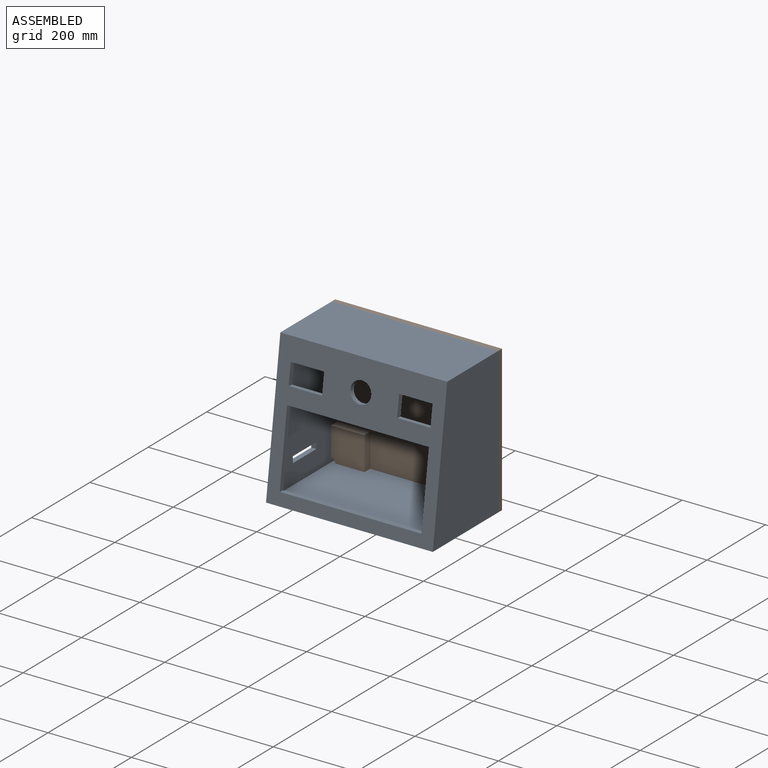
[diagram: assembled view]
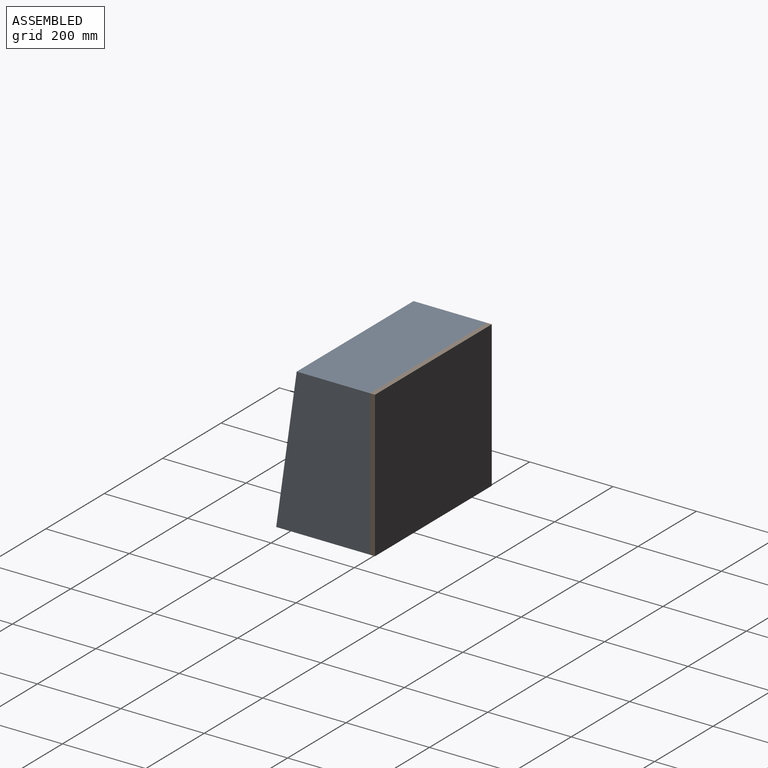
[diagram: assembled view, second angle]
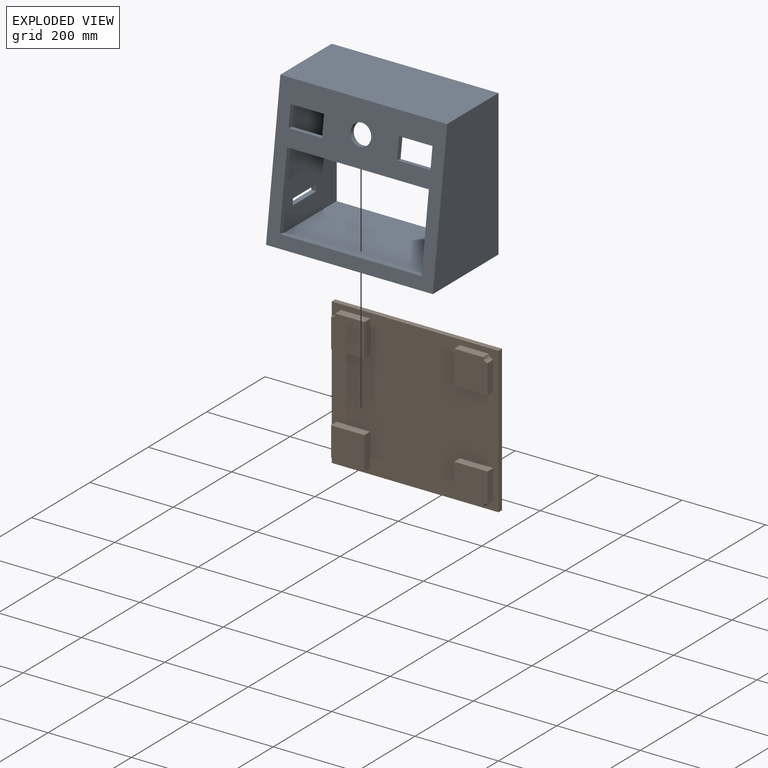
[diagram: exploded view]
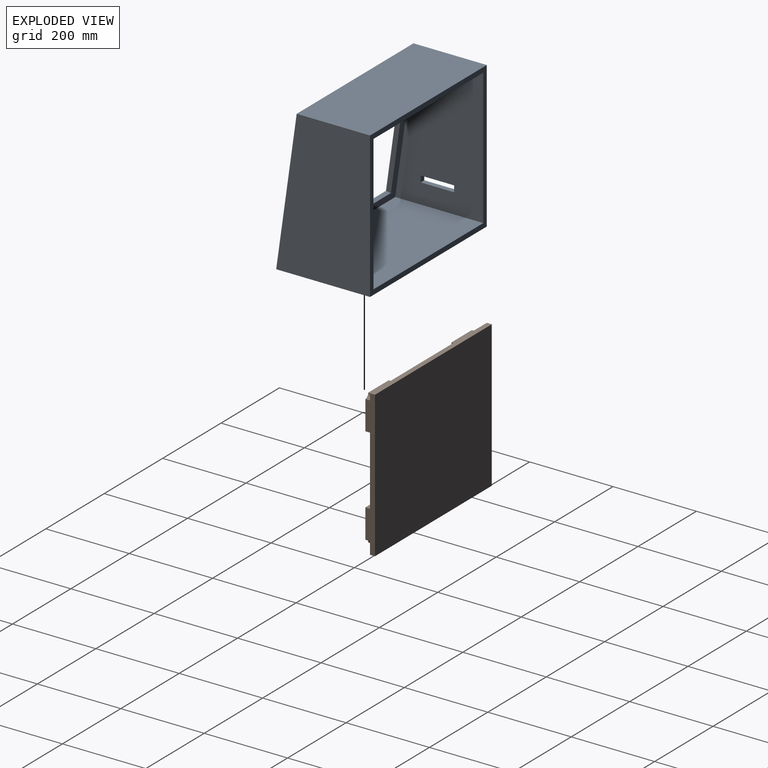
[diagram: exploded view, second angle]
ASSEMBLY  parts=2 mates=3
PART A: 28 faces, bbox 400x225x350 mm
  f0: plane 376x326mm, normal (0,0.99,-0.14), area 52617.1mm2, adj f2,f8,f9,f10,f15,f16,f17,f18
  f1: plane 350x225mm, normal (-1,0,0), area 68941.9mm2, adj f3,f4,f6,f7,f11,f12,f13,f14
  f2: plane 326x211.2mm, normal (1,0,0), area 60181.7mm2, adj f0,f3,f8,f10,f11,f12,f13,f14
  f3: plane 400x350mm, normal (0,1,0), area 17424mm2, adj f1,f2,f4,f5,f6,f8,f9,f10
  f4: plane 400x175.81mm, normal (0,0,1), area 70324.3mm2, adj f1,f3,f5,f7
  f5: plane 350x225mm, normal (1,0,0), area 70141.9mm2, adj f3,f4,f6,f7
  f6: plane 400x225mm, normal (0,0,-1), area 90000mm2, adj f1,f3,f5,f7
  f7: plane 400x350mm, normal (0,-0.99,0.14), area 70212.4mm2, adj f1,f4,f5,f6,f15,f16,f17,f18
  f8: plane 376x165.38mm, normal (0,0,-1), area 62182.6mm2, adj f0,f2,f3,f9
  f9: plane 326x211.2mm, normal (-1,0,0), area 61381.7mm2, adj f0,f3,f8,f10
  f10: plane 376x211.2mm, normal (0,0,1), area 79409.5mm2, adj f0,f2,f3,f9
  f11: plane 80x12mm, normal (0,0,-1), area 960mm2, adj f1,f2,f12,f14
  f12: plane 15x12mm, normal (0,-1,0), area 180mm2, adj f1,f2,f11,f13
  f13: plane 80x12mm, normal (0,0,1), area 960mm2, adj f1,f2,f12,f14
  f14: plane 15x12mm, normal (0,1,0), area 180mm2, adj f1,f2,f11,f13
  f15: plane 179.92x36.93mm, normal (1,0,0), area 2160mm2, adj f0,f7,f16,f17
  f16: plane 340x11.88mm, normal (0,-0.14,-0.99), area 4080mm2, adj f0,f7,f15,f18
  f17: plane 340x11.88mm, normal (0,0.14,0.99), area 4080mm2, adj f0,f7,f15,f18
  f18: plane 179.92x36.93mm, normal (-1,0,0), area 2160mm2, adj f0,f7,f16,f17
  f19: plane 51.18x18.84mm, normal (1,0,0), area 600mm2, adj f0,f7,f20,f21
  f20: plane 80x11.88mm, normal (0,-0.14,-0.99), area 960mm2, adj f0,f7,f19,f22
  f21: plane 80x11.88mm, normal (0,0.14,0.99), area 960mm2, adj f0,f7,f19,f22
  f22: plane 51.18x18.84mm, normal (-1,0,0), area 600mm2, adj f0,f7,f20,f21
  f23: plane 51.18x18.84mm, normal (1,0,0), area 600mm2, adj f0,f7,f24,f25
  f24: plane 80x11.88mm, normal (0,-0.14,-0.99), area 960mm2, adj f0,f7,f23,f26
  f25: plane 80x11.88mm, normal (0,0.14,0.99), area 960mm2, adj f0,f7,f23,f26
  f26: plane 51.18x18.84mm, normal (-1,0,0), area 600mm2, adj f0,f7,f24,f25
  f27: cylinder r=25mm len=51.18mm, axis (0,-0.99,0.14), area 1885mm2, adj f0,f7
PART B: 30 faces, bbox 400x32x350 mm
  f0: plane 80x80mm, normal (0,-1,0), area 6321.5mm2, adj f3,f5,f8,f23,f29
  f1: plane 80x80mm, normal (0,-1,0), area 6321.5mm2, adj f2,f4,f17,f24,f27
  f2: plane 70x20mm, normal (0,0,-1), area 1400mm2, adj f1,f13,f24,f27
  f3: plane 70x20mm, normal (0,0,1), area 1400mm2, adj f0,f13,f23,f29
  f4: plane 80x20mm, normal (0,0,1), area 1600mm2, adj f1,f13,f17,f24
  f5: plane 80x20mm, normal (0,0,-1), area 1600mm2, adj f0,f8,f13,f23
  f6: plane 80x80mm, normal (0,-1,0), area 6321.5mm2, adj f7,f18,f21,f22,f26
  f7: plane 70x20mm, normal (-1,0,0), area 1400mm2, adj f6,f13,f21,f26
  f8: plane 70x20mm, normal (1,0,0), area 1400mm2, adj f0,f5,f13,f29
  f9: plane 350x12mm, normal (-1,0,0), area 4200mm2, adj f10,f12,f13,f14
  f10: plane 400x12mm, normal (0,0,-1), area 4800mm2, adj f9,f11,f13,f14
  f11: plane 350x12mm, normal (1,0,0), area 4200mm2, adj f10,f12,f13,f14
  f12: plane 400x12mm, normal (0,0,1), area 4800mm2, adj f9,f11,f13,f14
  f13: plane 400x350mm, normal (0,-1,0), area 114714.2mm2, adj f2,f3,f4,f5,f7,f8,f9,f10
  f14: plane 400x350mm, normal (0,1,0), area 140000mm2, adj f9,f10,f11,f12
  f15: plane 70x20mm, normal (-1,0,0), area 1400mm2, adj f13,f19,f20,f28
  f16: plane 70x20mm, normal (0,0,-1), area 1400mm2, adj f13,f19,f25,f28
  f17: plane 70x20mm, normal (1,0,0), area 1400mm2, adj f1,f4,f13,f27
  f18: plane 70x20mm, normal (0,0,1), area 1400mm2, adj f6,f13,f22,f26
  f19: plane 80x80mm, normal (0,-1,0), area 6321.5mm2, adj f15,f16,f20,f25,f28
  f20: plane 80x20mm, normal (0,0,1), area 1600mm2, adj f13,f15,f19,f25
  f21: plane 80x20mm, normal (0,0,-1), area 1600mm2, adj f6,f7,f13,f22
  f22: plane 80x20mm, normal (1,0,0), area 1600mm2, adj f6,f13,f18,f21
  f23: plane 80x20mm, normal (-1,0,0), area 1600mm2, adj f0,f3,f5,f13
  f24: plane 80x20mm, normal (-1,0,0), area 1600mm2, adj f1,f2,f4,f13
  f25: plane 80x20mm, normal (1,0,0), area 1600mm2, adj f13,f16,f19,f20
  f26: cylinder r=10mm len=20mm, axis (0,-1,0), area 314.2mm2, adj f6,f7,f13,f18
  f27: cylinder r=10mm len=20mm, axis (0,-1,0), area 314.2mm2, adj f1,f2,f13,f17
  f28: cylinder r=10mm len=20mm, axis (0,-1,0), area 314.2mm2, adj f13,f15,f16,f19
  f29: cylinder r=10mm len=20mm, axis (0,-1,0), area 314.2mm2, adj f0,f3,f8,f13
PLACE A t=(13.31,66.97,196.34)mm
PLACE B t=(13.31,78.97,196.34)mm
MATE planar A.f4 <-> B.f12  axis (0,0,1) through (13.31,66.97,371.34)mm
MATE planar A.f5 <-> B.f11  axis (1,0,0) through (213.31,66.97,196.34)mm
MATE planar B.f13 <-> A.f3  axis (0,-1,0) through (-94.19,66.97,278.84)mm
